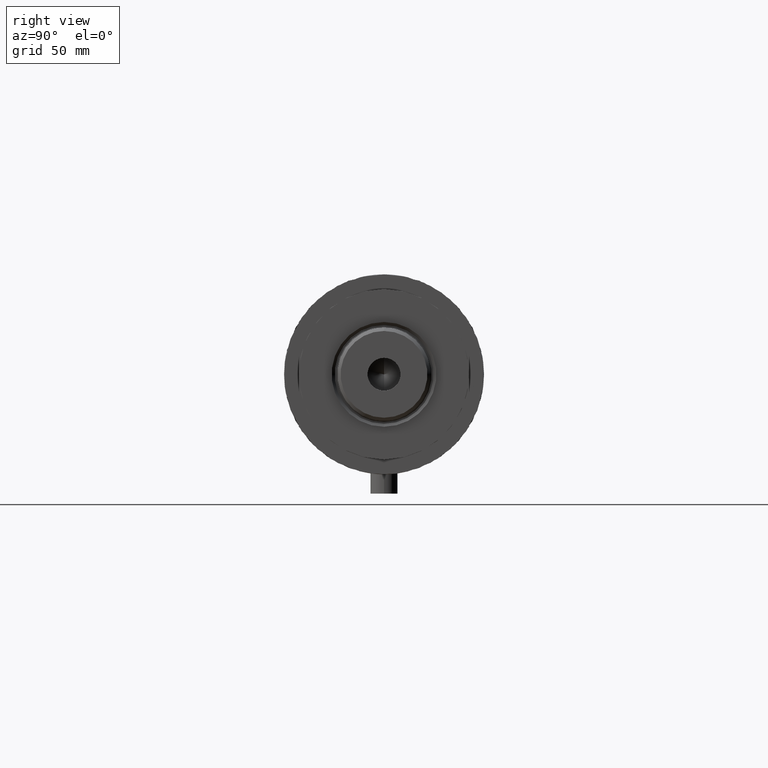
[diagram: clean part render]
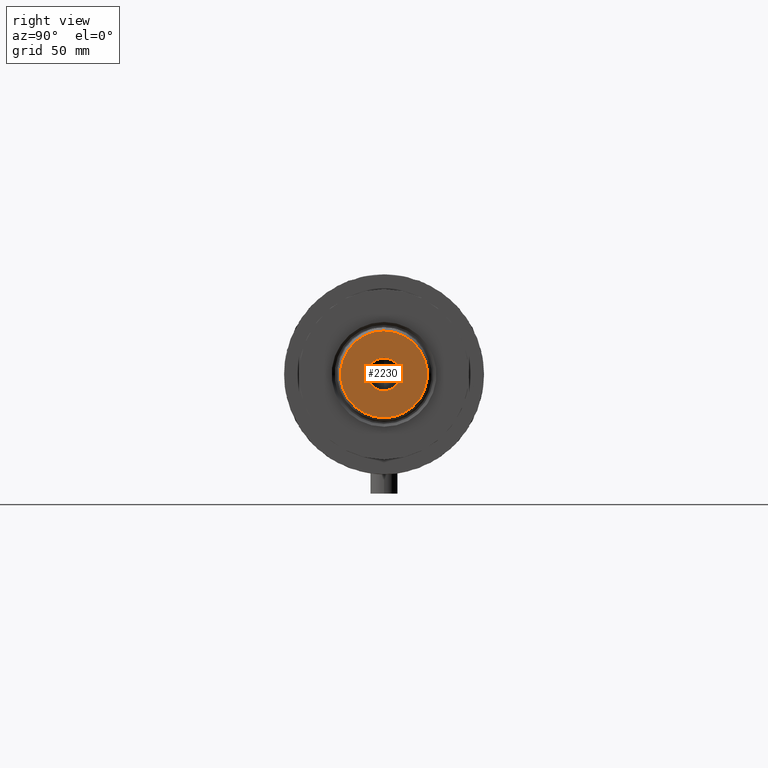
[diagram: same view with one face highlighted and labeled with its STEP entity id]
A machine part, right view. The second image highlights one B-rep face of the part: STEP entity #2230.
In plain terms, the highlighted planar face has unit normal (1, 0, -0).
Its self-contained STEP definition (entity closure, byte-faithful):
#125 = FACE_OUTER_BOUND ( 'NONE', #2393, .T. ) ;
#156 = CARTESIAN_POINT ( 'NONE',  ( 19.10000000000006182, 2.424800662311762954E-15, 253.3000000000000114 ) ) ;
#216 = VERTEX_POINT ( 'NONE', #3814 ) ;
#401 = CIRCLE ( 'NONE', #3722, 19.10000000000006182 ) ;
#670 = EDGE_CURVE ( 'NONE', #2843, #4136, #1556, .T. ) ;
#822 = VERTEX_POINT ( 'NONE', #156 ) ;
#908 = DIRECTION ( 'NONE',  ( 1.000000000000000000, 0.000000000000000000, 0.000000000000000000 ) ) ;
#1037 = ORIENTED_EDGE ( 'NONE', *, *, #3282, .F. ) ;
#1378 = CARTESIAN_POINT ( 'NONE',  ( 0.000000000000000000, 0.000000000000000000, 253.3000000000000114 ) ) ;
#1475 = ORIENTED_EDGE ( 'NONE', *, *, #670, .F. ) ;
#1550 = FACE_BOUND ( 'NONE', #4400, .T. ) ;
#1556 = CIRCLE ( 'NONE', #2142, 7.249999999999999112 ) ;
#1685 = ORIENTED_EDGE ( 'NONE', *, *, #2617, .T. ) ;
#1918 = CARTESIAN_POINT ( 'NONE',  ( 0.000000000000000000, 0.000000000000000000, 253.3000000000000114 ) ) ;
#1922 = AXIS2_PLACEMENT_3D ( 'NONE', #2960, #4361, #4012 ) ;
#1986 = DIRECTION ( 'NONE',  ( 0.000000000000000000, 0.000000000000000000, 1.000000000000000000 ) ) ;
#2045 = AXIS2_PLACEMENT_3D ( 'NONE', #1918, #3336, #908 ) ;
#2142 = AXIS2_PLACEMENT_3D ( 'NONE', #1378, #2778, #4169 ) ;
#2147 = DIRECTION ( 'NONE',  ( 1.000000000000000000, 0.000000000000000000, 0.000000000000000000 ) ) ;
#2230 = ADVANCED_FACE ( 'NONE', ( #125, #1550 ), #2596, .T. ) ;
#2243 = CARTESIAN_POINT ( 'NONE',  ( 7.249999999999999112, 0.000000000000000000, 253.3000000000000114 ) ) ;
#2244 = CIRCLE ( 'NONE', #2045, 7.249999999999999112 ) ;
#2299 = EDGE_CURVE ( 'NONE', #216, #822, #401, .T. ) ;
#2315 = CARTESIAN_POINT ( 'NONE',  ( 0.000000000000000000, 0.000000000000000000, 253.3000000000000114 ) ) ;
#2393 = EDGE_LOOP ( 'NONE', ( #3512, #1685 ) ) ;
#2531 = AXIS2_PLACEMENT_3D ( 'NONE', #2315, #1986, #3478 ) ;
#2596 = PLANE ( 'NONE',  #1922 ) ;
#2617 = EDGE_CURVE ( 'NONE', #822, #216, #4525, .T. ) ;
#2778 = DIRECTION ( 'NONE',  ( -0.000000000000000000, -0.000000000000000000, 1.000000000000000000 ) ) ;
#2843 = VERTEX_POINT ( 'NONE', #2243 ) ;
#2960 = CARTESIAN_POINT ( 'NONE',  ( 0.000000000000000000, 0.000000000000000000, 253.3000000000000114 ) ) ;
#3212 = CARTESIAN_POINT ( 'NONE',  ( 0.000000000000000000, 0.000000000000000000, 253.3000000000000114 ) ) ;
#3239 = DIRECTION ( 'NONE',  ( 0.000000000000000000, 0.000000000000000000, 1.000000000000000000 ) ) ;
#3282 = EDGE_CURVE ( 'NONE', #4136, #2843, #2244, .T. ) ;
#3336 = DIRECTION ( 'NONE',  ( -0.000000000000000000, -0.000000000000000000, 1.000000000000000000 ) ) ;
#3478 = DIRECTION ( 'NONE',  ( 1.000000000000000000, 0.000000000000000000, 0.000000000000000000 ) ) ;
#3512 = ORIENTED_EDGE ( 'NONE', *, *, #2299, .T. ) ;
#3722 = AXIS2_PLACEMENT_3D ( 'NONE', #3212, #3239, #2147 ) ;
#3814 = CARTESIAN_POINT ( 'NONE',  ( -19.10000000000006182, 0.000000000000000000, 253.3000000000000114 ) ) ;
#4012 = DIRECTION ( 'NONE',  ( 1.000000000000000000, 0.000000000000000000, -0.000000000000000000 ) ) ;
#4136 = VERTEX_POINT ( 'NONE', #4399 ) ;
#4169 = DIRECTION ( 'NONE',  ( 1.000000000000000000, 0.000000000000000000, 0.000000000000000000 ) ) ;
#4361 = DIRECTION ( 'NONE',  ( 0.000000000000000000, 0.000000000000000000, 1.000000000000000000 ) ) ;
#4399 = CARTESIAN_POINT ( 'NONE',  ( -7.249999999999999112, 8.878689293818310074E-16, 253.3000000000000114 ) ) ;
#4400 = EDGE_LOOP ( 'NONE', ( #1475, #1037 ) ) ;
#4525 = CIRCLE ( 'NONE', #2531, 19.10000000000006182 ) ;